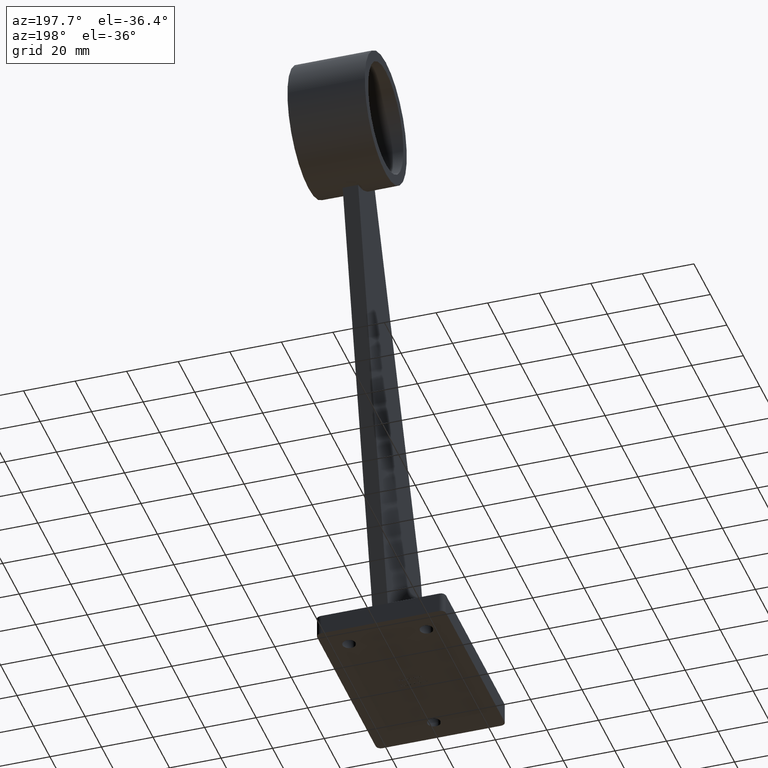
[diagram: clean part render]
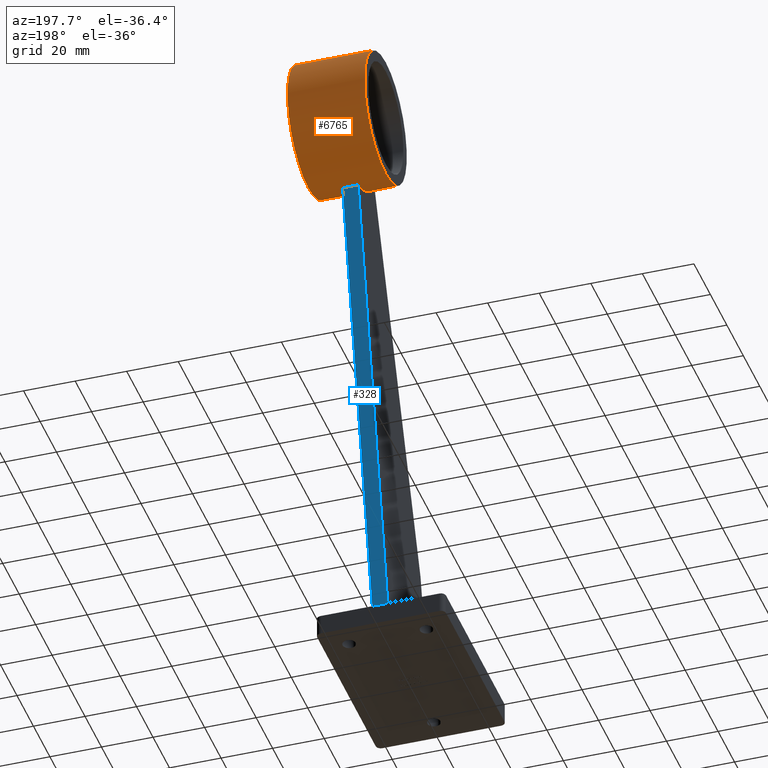
[diagram: same view with the hole feature highlighted: cylindrical wall and planar end face, labeled with their STEP entity ids]
A machine part, auxiliary view. The highlighted faces form one hole feature of diameter 51 mm: the cylindrical wall (entity #6765, orange) and its adjacent planar end face (entity #328, blue) — they share a circular edge in the B-rep.
Wall:
#103 = CARTESIAN_POINT ( 'NONE',  ( -2.100073886416768953, 55.48428676774947377, 212.8676782864014569 ) ) ;
#202 = CARTESIAN_POINT ( 'NONE',  ( -0.2752669258845035771, 54.44719391796184027, 210.9004058946567000 ) ) ;
#247 = CARTESIAN_POINT ( 'NONE',  ( -0.2770550746789550711, 56.53344737827564614, 214.5139381141528361 ) ) ;
#261 = EDGE_CURVE ( 'NONE', #13545, #11864, #11139, .T. ) ;
#291 = CARTESIAN_POINT ( 'NONE',  ( -1.822294103724356740, 55.96125180903748486, 213.6508349336732522 ) ) ;
#380 = CARTESIAN_POINT ( 'NONE',  ( 1.669122441164216930, 56.08491808673522883, 213.8440351628042038 ) ) ;
#775 = LINE ( 'NONE', #10085, #10516 ) ;
#882 = CIRCLE ( 'NONE', #7209, 25.49999999999999645 ) ;
#921 = DIRECTION ( 'NONE',  ( 0.000000000000000000, 0.000000000000000000, -1.000000000000000000 ) ) ;
#1248 = CARTESIAN_POINT ( 'NONE',  ( -1.993192082996712688, 55.76150720308228159, 213.3305707416730570 ) ) ;
#1305 = CARTESIAN_POINT ( 'NONE',  ( 1.289697830089673536, 56.30356715490667341, 214.1774035862536607 ) ) ;
#1439 = FACE_OUTER_BOUND ( 'NONE', #5411, .T. ) ;
#1447 = CARTESIAN_POINT ( 'NONE',  ( -1.670337499428492967, 56.08403152436552119, 213.8426609533973988 ) ) ;
#1490 = CARTESIAN_POINT ( 'NONE',  ( 1.993258047854111759, 55.08622020549162102, 212.1609494729769096 ) ) ;
#1605 = DIRECTION ( 'NONE',  ( -1.000000000000000000, -0.000000000000000000, -0.000000000000000000 ) ) ;
#1633 = CARTESIAN_POINT ( 'NONE',  ( 1.582877276748827500, 54.75546618989465486, 211.5302042317364055 ) ) ;
#1848 = EDGE_CURVE ( 'NONE', #3667, #3667, #882, .T. ) ;
#1929 = AXIS2_PLACEMENT_3D ( 'NONE', #14561, #5414, #5210 ) ;
#2002 = CARTESIAN_POINT ( 'NONE',  ( -15.00000000000000000, 77.50000000000001421, 200.0000000000000000 ) ) ;
#2058 = EDGE_CURVE ( 'NONE', #12244, #12244, #3659, .T. ) ;
#2454 = CARTESIAN_POINT ( 'NONE',  ( -2.044639982466134320, 55.14463589078562222, 212.2699469199698399 ) ) ;
#2503 = CARTESIAN_POINT ( 'NONE',  ( -1.835137253062850027, 54.90578279497353975, 211.8243499088329145 ) ) ;
#2548 = CARTESIAN_POINT ( 'NONE',  ( 3.000000000000000888, 54.35731167978458700, 189.2917799185221668 ) ) ;
#2588 = CARTESIAN_POINT ( 'NONE',  ( -1.583582562319257203, 56.14192854697918023, 213.9317060560475170 ) ) ;
#2676 = FACE_BOUND ( 'NONE', #7333, .T. ) ;
#2735 = CARTESIAN_POINT ( 'NONE',  ( 1.671457133818818441, 54.80456840716230005, 211.6267122668598688 ) ) ;
#2933 = CARTESIAN_POINT ( 'NONE',  ( 0.000000000000000000, 54.44136533085251983, 210.8880378027810991 ) ) ;
#3028 = DIRECTION ( 'NONE',  ( -1.000000000000000000, -0.000000000000000000, -0.000000000000000000 ) ) ;
#3038 = CYLINDRICAL_SURFACE ( 'NONE', #1929, 25.49999999999999645 ) ;
#3425 = CIRCLE ( 'NONE', #14699, 25.49999999999999645 ) ;
#3574 = CARTESIAN_POINT ( 'NONE',  ( -2.099851303524173929, 55.27877742316361775, 212.5116889994419864 ) ) ;
#3627 = CARTESIAN_POINT ( 'NONE',  ( -1.054205028420095447, 56.38333762886109923, 214.2948376251985678 ) ) ;
#3659 = B_SPLINE_CURVE_WITH_KNOTS ( 'NONE', 3,
 ( #12869, #13936, #202, #5962, #9413, #11680, #6004, #13833, #13986, #8186, #2503, #2454, #3574, #103, #7118, #14028, #1248, #4910, #291, #1447, #2588, #10638, #10494, #3627, #8239, #3762, #4766, #247, #5814, #6980, #4720, #11634, #1305, #8558, #380, #11956, #8415, #6104, #11865, #6250, #12002, #9690, #8509, #9738, #1490, #14253, #14067, #2735, #1633, #13055, #10674, #12956, #10773, #5047, #12912, #6056 ),
 .UNSPECIFIED., .T., .F.,
 ( 4, 2, 2, 2, 2, 2, 2, 2, 2, 2, 2, 2, 2, 2, 2, 2, 2, 2, 2, 2, 2, 2, 2, 2, 2, 2, 2, 4 ),
 ( 0.000000000000000000, 0.0004104734709353608153, 0.0008209469418707216306, 0.001231420412806082066, 0.001641893883741442611, 0.002462840825612110790, 0.003283787767482779403, 0.003694261238418144501, 0.004104734709353509599, 0.004515208180288874697, 0.004925681651224239795, 0.005336155122159604892, 0.005746628593094970858, 0.006157102064030335956, 0.006567575534965701053, 0.007388522476836430382, 0.008209469418707161445, 0.008619942889642526543, 0.009030416360577891641, 0.009440889831513256739, 0.009851363302448621836, 0.01026183677338398693, 0.01067231024431935203, 0.01108278371525471713, 0.01149325718619008223, 0.01190373065712544733, 0.01231420412806081242, 0.01313515106993154609 ),
 .UNSPECIFIED. ) ;
#3667 = VERTEX_POINT ( 'NONE', #14366 ) ;
#3762 = CARTESIAN_POINT ( 'NONE',  ( -0.6771053414310689300, 56.48013382368441881, 214.4366901540807930 ) ) ;
#3794 = VECTOR ( 'NONE', #1605, 1000.000000000000000 ) ;
#4111 = VERTEX_POINT ( 'NONE', #6805 ) ;
#4205 = CARTESIAN_POINT ( 'NONE',  ( 3.000000000000000000, 77.50000000000001421, 200.0000000000000000 ) ) ;
#4720 = CARTESIAN_POINT ( 'NONE',  ( 0.5497640949370750096, 56.50987302155034797, 214.4801782692479719 ) ) ;
#4766 = CARTESIAN_POINT ( 'NONE',  ( -0.5462099929733917891, 56.50277119661418368, 214.4695235235740256 ) ) ;
#4841 = ORIENTED_EDGE ( 'NONE', *, *, #1848, .F. ) ;
#4910 = CARTESIAN_POINT ( 'NONE',  ( -1.888020714575353809, 55.89560086643188441, 213.5468122987614379 ) ) ;
#5047 = CARTESIAN_POINT ( 'NONE',  ( 0.5533859377415798475, 54.46515514655388301, 210.9387845090656413 ) ) ;
#5210 = DIRECTION ( 'NONE',  ( 0.000000000000000000, 0.000000000000000000, 1.000000000000000000 ) ) ;
#5411 = EDGE_LOOP ( 'NONE', ( #4841 ) ) ;
#5414 = DIRECTION ( 'NONE',  ( -1.000000000000000000, -0.000000000000000000, -0.000000000000000000 ) ) ;
#5574 = DIRECTION ( 'NONE',  ( 1.000000000000000000, 0.000000000000000000, 0.000000000000000000 ) ) ;
#5748 = FACE_OUTER_BOUND ( 'NONE', #9529, .T. ) ;
#5814 = CARTESIAN_POINT ( 'NONE',  ( -0.1378350449928566757, 56.54133680910002369, 214.5253033446090285 ) ) ;
#5888 = AXIS2_PLACEMENT_3D ( 'NONE', #12547, #14787, #921 ) ;
#5962 = CARTESIAN_POINT ( 'NONE',  ( -0.5437344880969523508, 54.47013595652249052, 210.9487934980647594 ) ) ;
#6004 = CARTESIAN_POINT ( 'NONE',  ( -1.052009145292167380, 54.56140533267594606, 211.1389724736448272 ) ) ;
#6056 = CARTESIAN_POINT ( 'NONE',  ( 4.065758146820641628E-17, 54.44136533085253404, 210.8880378027810991 ) ) ;
#6104 = CARTESIAN_POINT ( 'NONE',  ( 1.991944648297779397, 55.76342154634961901, 213.3336906077510378 ) ) ;
#6250 = CARTESIAN_POINT ( 'NONE',  ( 2.086133895390165804, 55.55589685763782626, 212.9893940867520712 ) ) ;
#6253 = CIRCLE ( 'NONE', #8484, 25.49999999999999645 ) ;
#6262 = DIRECTION ( 'NONE',  ( 0.000000000000000000, 0.000000000000000000, -1.000000000000000000 ) ) ;
#6349 = ORIENTED_EDGE ( 'NONE', *, *, #6766, .T. ) ;
#6765 = ADVANCED_FACE ( 'NONE', ( #2676, #7350, #1439, #5748 ), #3038, .T. ) ;
#6766 = EDGE_CURVE ( 'NONE', #13545, #13292, #3425, .T. ) ;
#6805 = CARTESIAN_POINT ( 'NONE',  ( -3.000000000000000000, 73.50000000000000000, 174.8156794810739996 ) ) ;
#6980 = CARTESIAN_POINT ( 'NONE',  ( 0.2733829336889419537, 56.54142213706438014, 214.5254264644187856 ) ) ;
#7118 = CARTESIAN_POINT ( 'NONE',  ( -2.086432461926153170, 55.55485895280471453, 212.9876452708938359 ) ) ;
#7209 = AXIS2_PLACEMENT_3D ( 'NONE', #10214, #5574, #8044 ) ;
#7333 = EDGE_LOOP ( 'NONE', ( #9800 ) ) ;
#7350 = FACE_BOUND ( 'NONE', #11427, .T. ) ;
#8044 = DIRECTION ( 'NONE',  ( 0.000000000000000000, 0.000000000000000000, -1.000000000000000000 ) ) ;
#8186 = CARTESIAN_POINT ( 'NONE',  ( -1.678695858380248263, 54.79847981107506882, 211.6158777008026277 ) ) ;
#8239 = CARTESIAN_POINT ( 'NONE',  ( -0.9314683265812169211, 56.42043534913173630, 214.3493815478234126 ) ) ;
#8312 = EDGE_CURVE ( 'NONE', #9769, #9769, #6253, .T. ) ;
#8341 = CARTESIAN_POINT ( 'NONE',  ( -2.999999999999999112, 54.35731167978458700, 189.2917799185221952 ) ) ;
#8415 = CARTESIAN_POINT ( 'NONE',  ( 1.886356009640111742, 55.89739042894791510, 213.5496644908874089 ) ) ;
#8484 = AXIS2_PLACEMENT_3D ( 'NONE', #2002, #13478, #6262 ) ;
#8509 = CARTESIAN_POINT ( 'NONE',  ( 2.086614573074731638, 55.28059904943245328, 212.5126434641860840 ) ) ;
#8558 = CARTESIAN_POINT ( 'NONE',  ( 1.580384873571782478, 56.14383383170503805, 213.9346170038214154 ) ) ;
#8892 = ORIENTED_EDGE ( 'NONE', *, *, #13858, .T. ) ;
#9413 = CARTESIAN_POINT ( 'NONE',  ( -0.6771294247729349181, 54.48753133426209416, 210.9854030761437684 ) ) ;
#9529 = EDGE_LOOP ( 'NONE', ( #9619 ) ) ;
#9619 = ORIENTED_EDGE ( 'NONE', *, *, #8312, .T. ) ;
#9690 = CARTESIAN_POINT ( 'NONE',  ( 2.100134271862207580, 55.34804215699373486, 212.6317056441443185 ) ) ;
#9738 = CARTESIAN_POINT ( 'NONE',  ( 2.033483573927915344, 55.15007642988551595, 212.2779860512202106 ) ) ;
#9769 = VERTEX_POINT ( 'NONE', #10976 ) ;
#9800 = ORIENTED_EDGE ( 'NONE', *, *, #2058, .T. ) ;
#9948 = CARTESIAN_POINT ( 'NONE',  ( 2.999999999999999112, 73.50000000000000000, 174.8156794810739711 ) ) ;
#10055 = DIRECTION ( 'NONE',  ( 0.000000000000000000, 0.000000000000000000, -1.000000000000000000 ) ) ;
#10085 = CARTESIAN_POINT ( 'NONE',  ( 3.000000000000000000, 73.50000000000000000, 174.8156794810739996 ) ) ;
#10214 = CARTESIAN_POINT ( 'NONE',  ( 15.00000000000000000, 77.50000000000001421, 200.0000000000000000 ) ) ;
#10494 = CARTESIAN_POINT ( 'NONE',  ( -1.281538936697958375, 56.29823918962445362, 214.1683150362734978 ) ) ;
#10516 = VECTOR ( 'NONE', #3028, 1000.000000000000000 ) ;
#10638 = CARTESIAN_POINT ( 'NONE',  ( -1.387628548782914306, 56.24989894020053782, 214.0958453018172349 ) ) ;
#10674 = CARTESIAN_POINT ( 'NONE',  ( 1.283728406994136373, 54.62969946790408216, 211.2785318334723854 ) ) ;
#10773 = CARTESIAN_POINT ( 'NONE',  ( 0.9322498694561491828, 54.53348644153064839, 211.0811563457145610 ) ) ;
#10976 = CARTESIAN_POINT ( 'NONE',  ( -15.00000000000000000, 77.50000000000001421, 174.5000000000000284 ) ) ;
#11139 = LINE ( 'NONE', #13027, #3794 ) ;
#11427 = EDGE_LOOP ( 'NONE', ( #6349, #8892, #12210, #14798 ) ) ;
#11634 = CARTESIAN_POINT ( 'NONE',  ( 1.055346634003174966, 56.39150788878001919, 214.3070805572347410 ) ) ;
#11680 = CARTESIAN_POINT ( 'NONE',  ( -0.9314143365514259143, 54.53327850270911625, 211.0807264429185182 ) ) ;
#11864 = VERTEX_POINT ( 'NONE', #8341 ) ;
#11865 = CARTESIAN_POINT ( 'NONE',  ( 2.032514250610748974, 55.69387399271450079, 213.2197159582936763 ) ) ;
#11956 = CARTESIAN_POINT ( 'NONE',  ( 1.821763861562433418, 55.96177435253073895, 213.6516621295539267 ) ) ;
#12002 = CARTESIAN_POINT ( 'NONE',  ( 2.099863729233002463, 55.48671122125399791, 212.8718429489398147 ) ) ;
#12114 = DIRECTION ( 'NONE',  ( 1.000000000000000000, -0.000000000000000000, 0.000000000000000000 ) ) ;
#12210 = ORIENTED_EDGE ( 'NONE', *, *, #13899, .F. ) ;
#12244 = VERTEX_POINT ( 'NONE', #2933 ) ;
#12547 = CARTESIAN_POINT ( 'NONE',  ( -3.000000000000000000, 77.50000000000001421, 200.0000000000000000 ) ) ;
#12869 = CARTESIAN_POINT ( 'NONE',  ( 4.065758146820641628E-17, 54.44136533085253404, 210.8880378027810991 ) ) ;
#12912 = CARTESIAN_POINT ( 'NONE',  ( 0.2775981478388158119, 54.44136533085253404, 210.8880378027810423 ) ) ;
#12956 = CARTESIAN_POINT ( 'NONE',  ( 1.054526181151268283, 54.56201644666770534, 211.1402350627845692 ) ) ;
#13027 = CARTESIAN_POINT ( 'NONE',  ( 3.000000000000000000, 54.35731167978458700, 189.2917799185221952 ) ) ;
#13055 = CARTESIAN_POINT ( 'NONE',  ( 1.389318202104934175, 54.66831911350185891, 211.3566621752032688 ) ) ;
#13292 = VERTEX_POINT ( 'NONE', #9948 ) ;
#13478 = DIRECTION ( 'NONE',  ( 1.000000000000000000, 0.000000000000000000, 0.000000000000000000 ) ) ;
#13532 = CIRCLE ( 'NONE', #5888, 25.49999999999999645 ) ;
#13545 = VERTEX_POINT ( 'NONE', #2548 ) ;
#13833 = CARTESIAN_POINT ( 'NONE',  ( -1.280239789343413870, 54.62854055746980464, 211.2761773686432036 ) ) ;
#13858 = EDGE_CURVE ( 'NONE', #13292, #4111, #775, .T. ) ;
#13899 = EDGE_CURVE ( 'NONE', #11864, #4111, #13532, .T. ) ;
#13936 = CARTESIAN_POINT ( 'NONE',  ( -0.1387990739194058520, 54.44136533085253404, 210.8880378027810991 ) ) ;
#13986 = CARTESIAN_POINT ( 'NONE',  ( -1.388255184350261073, 54.66790464498487268, 211.3558280240384875 ) ) ;
#14028 = CARTESIAN_POINT ( 'NONE',  ( -2.032842836749617188, 55.69329494147185500, 213.2187654398672407 ) ) ;
#14067 = CARTESIAN_POINT ( 'NONE',  ( 1.823573659265397717, 54.90966298243738208, 211.8296122825080658 ) ) ;
#14253 = CARTESIAN_POINT ( 'NONE',  ( 1.887991615645295163, 54.96587947274581865, 211.9364831011563126 ) ) ;
#14366 = CARTESIAN_POINT ( 'NONE',  ( 15.00000000000000000, 77.50000000000001421, 174.5000000000000284 ) ) ;
#14561 = CARTESIAN_POINT ( 'NONE',  ( 15.00000000000000000, 77.50000000000001421, 200.0000000000000000 ) ) ;
#14699 = AXIS2_PLACEMENT_3D ( 'NONE', #4205, #12114, #10055 ) ;
#14787 = DIRECTION ( 'NONE',  ( 1.000000000000000000, -0.000000000000000000, 0.000000000000000000 ) ) ;
#14798 = ORIENTED_EDGE ( 'NONE', *, *, #261, .F. ) ;
End face:
#60 = EDGE_LOOP ( 'NONE', ( #3875, #14193, #1700, #11257 ) ) ;
#328 = ADVANCED_FACE ( 'NONE', ( #8287 ), #10172, .F. ) ;
#351 = VECTOR ( 'NONE', #11863, 1000.000000000000000 ) ;
#775 = LINE ( 'NONE', #10085, #10516 ) ;
#1069 = DIRECTION ( 'NONE',  ( 0.000000000000000000, -0.9774967056911922914, 0.2109506823000735498 ) ) ;
#1700 = ORIENTED_EDGE ( 'NONE', *, *, #9752, .F. ) ;
#2029 = EDGE_CURVE ( 'NONE', #14098, #4111, #3609, .T. ) ;
#2549 = CARTESIAN_POINT ( 'NONE',  ( 3.000000000000000000, 37.49999999999999289, 8.000000000000001776 ) ) ;
#3028 = DIRECTION ( 'NONE',  ( -1.000000000000000000, -0.000000000000000000, -0.000000000000000000 ) ) ;
#3609 = LINE ( 'NONE', #9361, #10428 ) ;
#3875 = ORIENTED_EDGE ( 'NONE', *, *, #2029, .T. ) ;
#4111 = VERTEX_POINT ( 'NONE', #6805 ) ;
#4171 = CARTESIAN_POINT ( 'NONE',  ( -3.000000000000000000, 37.49999999999999289, 8.000000000000001776 ) ) ;
#6805 = CARTESIAN_POINT ( 'NONE',  ( -3.000000000000000000, 73.50000000000000000, 174.8156794810739996 ) ) ;
#6880 = AXIS2_PLACEMENT_3D ( 'NONE', #7966, #1069, #14734 ) ;
#6951 = EDGE_CURVE ( 'NONE', #8464, #14098, #7185, .T. ) ;
#7185 = LINE ( 'NONE', #2549, #351 ) ;
#7966 = CARTESIAN_POINT ( 'NONE',  ( 3.000000000000000000, 34.18161408529944367, -7.376633365033234746 ) ) ;
#8287 = FACE_OUTER_BOUND ( 'NONE', #60, .T. ) ;
#8464 = VERTEX_POINT ( 'NONE', #12672 ) ;
#9361 = CARTESIAN_POINT ( 'NONE',  ( -3.000000000000000000, 34.18161408529944367, -7.376633365033234746 ) ) ;
#9452 = DIRECTION ( 'NONE',  ( 0.000000000000000000, 0.2109506823000734943, 0.9774967056911922914 ) ) ;
#9752 = EDGE_CURVE ( 'NONE', #8464, #13292, #13378, .T. ) ;
#9948 = CARTESIAN_POINT ( 'NONE',  ( 2.999999999999999112, 73.50000000000000000, 174.8156794810739711 ) ) ;
#10085 = CARTESIAN_POINT ( 'NONE',  ( 3.000000000000000000, 73.50000000000000000, 174.8156794810739996 ) ) ;
#10172 = PLANE ( 'NONE',  #6880 ) ;
#10369 = VECTOR ( 'NONE', #14382, 1000.000000000000000 ) ;
#10428 = VECTOR ( 'NONE', #9452, 1000.000000000000000 ) ;
#10516 = VECTOR ( 'NONE', #3028, 1000.000000000000000 ) ;
#11257 = ORIENTED_EDGE ( 'NONE', *, *, #6951, .T. ) ;
#11863 = DIRECTION ( 'NONE',  ( -1.000000000000000000, -0.000000000000000000, -0.000000000000000000 ) ) ;
#12672 = CARTESIAN_POINT ( 'NONE',  ( 3.000000000000000000, 37.49999999999999289, 8.000000000000001776 ) ) ;
#13292 = VERTEX_POINT ( 'NONE', #9948 ) ;
#13378 = LINE ( 'NONE', #13385, #10369 ) ;
#13385 = CARTESIAN_POINT ( 'NONE',  ( 3.000000000000000000, 34.18161408529944367, -7.376633365033234746 ) ) ;
#13858 = EDGE_CURVE ( 'NONE', #13292, #4111, #775, .T. ) ;
#14098 = VERTEX_POINT ( 'NONE', #4171 ) ;
#14193 = ORIENTED_EDGE ( 'NONE', *, *, #13858, .F. ) ;
#14382 = DIRECTION ( 'NONE',  ( 0.000000000000000000, 0.2109506823000734943, 0.9774967056911922914 ) ) ;
#14734 = DIRECTION ( 'NONE',  ( 0.000000000000000000, -0.2109506823000735498, -0.9774967056911922914 ) ) ;